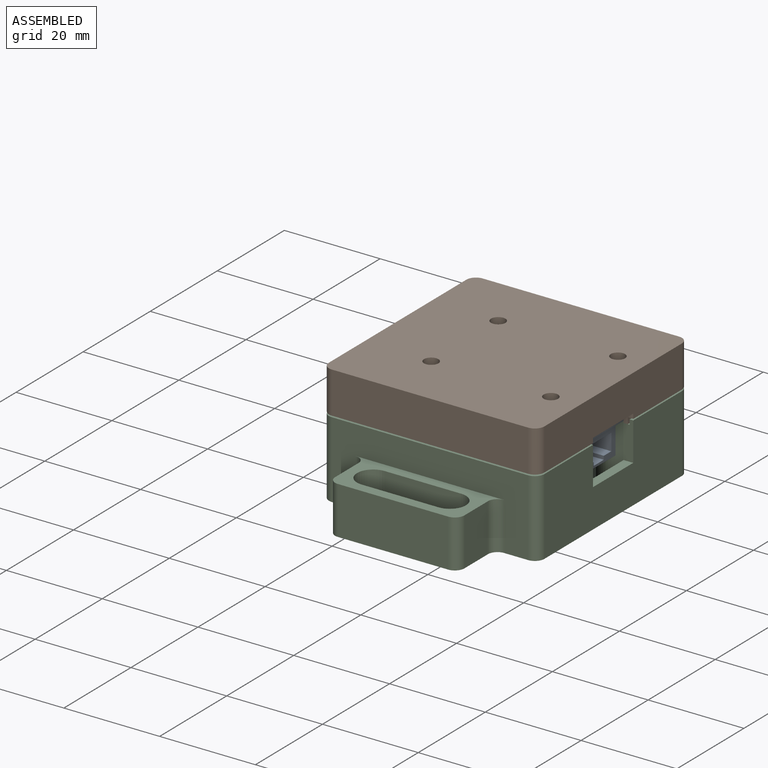
[diagram: assembled view]
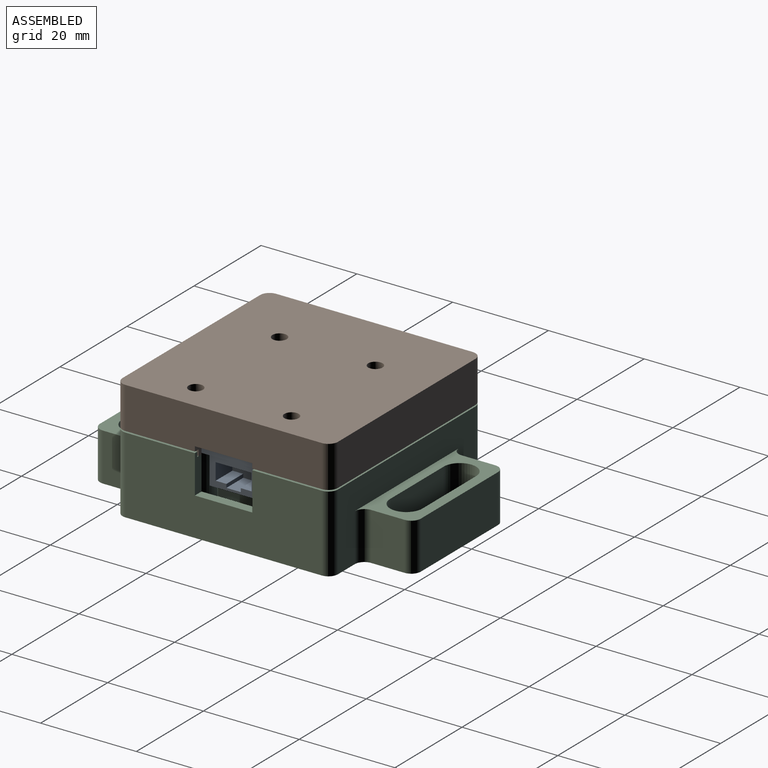
[diagram: assembled view, second angle]
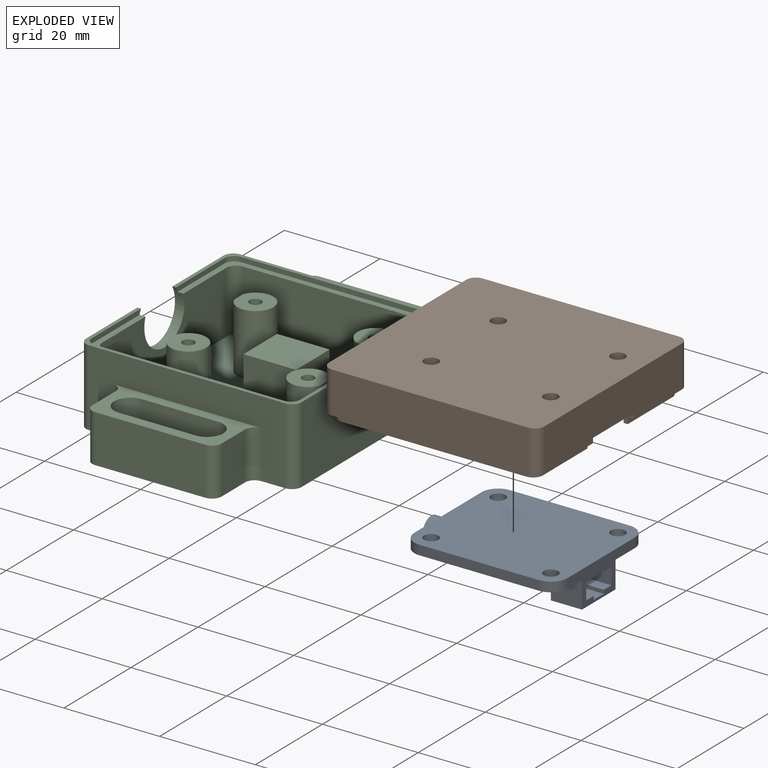
[diagram: exploded view]
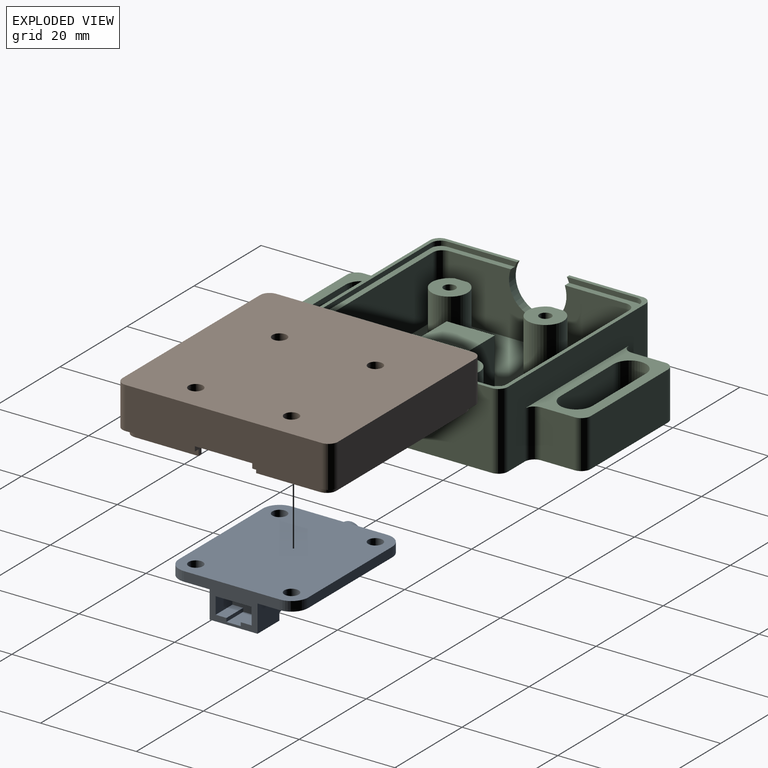
[diagram: exploded view, second angle]
ASSEMBLY  parts=3 mates=6
PART A: 41 faces, bbox 35.5x27x8 mm
  f0: plane 4x1.5mm, normal (-1,0,0), area 3.2mm2, adj f33,f35,f36,f38
  f1: plane 5x2.25mm, normal (0,0,1), area 11.2mm2, adj f2,f23,f27,f29
  f2: plane 10x6mm, normal (1,0,0), area 31.5mm2, adj f1,f3,f5,f6,f8,f23,f24,f25
  f3: plane 8x6mm, normal (0,-1,0), area 45.4mm2, adj f2,f4,f6,f8,f21,f22
  f4: plane 10x4mm, normal (-1,0,0), area 40mm2, adj f3,f5,f8,f22
  f5: plane 8x6mm, normal (0,1,0), area 45.4mm2, adj f2,f4,f6,f8,f21,f22
  f6: plane 10x6.5mm, normal (0,0,-1), area 65mm2, adj f2,f3,f5,f21
  f7: plane 32x27mm, normal (0,0,1), area 825.2mm2, adj f9,f10,f11,f12,f13,f14,f15,f16
  f8: plane 32x27mm, normal (0,0,-1), area 682.2mm2, adj f2,f3,f4,f5,f9,f10,f11,f12
  f9: plane 20x2mm, normal (1,0,0), area 40mm2, adj f7,f8,f17,f20
  f10: plane 25x2mm, normal (0,1,0), area 50mm2, adj f7,f8,f17,f18
  f11: plane 20x2mm, normal (-1,0,0), area 40mm2, adj f7,f8,f18,f19,f36
  f12: plane 25x2mm, normal (0,-1,0), area 50mm2, adj f7,f8,f19,f20
  f13: cylinder r=1.5mm len=3mm, axis (0,0,1), area 18.8mm2, adj f7,f8
  f14: cylinder r=1.5mm len=3mm, axis (0,0,1), area 18.8mm2, adj f7,f8
  f15: cylinder r=1.5mm len=3mm, axis (0,0,1), area 18.8mm2, adj f7,f8
  f16: cylinder r=1.5mm len=3mm, axis (0,0,1), area 18.8mm2, adj f7,f8
  f17: cylinder r=3.5mm len=3.5mm, axis (0,0,1), area 11mm2, adj f7,f8,f9,f10
  f18: cylinder r=3.5mm len=3.5mm, axis (0,0,-1), area 11mm2, adj f7,f8,f10,f11
  f19: cylinder r=3.5mm len=3.5mm, axis (0,0,1), area 11mm2, adj f7,f8,f11,f12
  f20: cylinder r=3.5mm len=3.5mm, axis (0,0,-1), area 11mm2, adj f7,f8,f9,f12
  f21: plane 10x1.5mm, normal (-1,0,0), area 15mm2, adj f3,f5,f6,f22
  f22: plane 10x1.5mm, normal (-0.32,0,-0.95), area 15.8mm2, adj f3,f4,f5,f21
  f23: plane 5x3.5mm, normal (0,1,0), area 17.5mm2, adj f1,f2,f26,f27
  f24: plane 5x2.25mm, normal (0,0,1), area 11.2mm2, adj f2,f25,f27,f28
  f25: plane 5x3.5mm, normal (0,-1,0), area 17.5mm2, adj f2,f24,f26,f27
  f26: plane 7.5x5mm, normal (0,0,-1), area 37.5mm2, adj f2,f23,f25,f27
  f27: plane 7.5x4.25mm, normal (1,0,0), area 28.5mm2, adj f1,f23,f24,f25,f26,f28,f29,f30
  f28: plane 5x0.75mm, normal (0,-1,0), area 3.7mm2, adj f2,f24,f27,f30
  f29: plane 5x0.75mm, normal (0,1,0), area 3.7mm2, adj f1,f2,f27,f30
  f30: plane 5x3mm, normal (0,0,1), area 15mm2, adj f2,f27,f28,f29
  f31: plane 12x4mm, normal (0,-1,0), area 48mm2, adj f8,f32,f34,f35,f36
  f32: plane 4x1.5mm, normal (-1,0,0), area 3.2mm2, adj f31,f35,f36,f38
  f33: plane 12x4mm, normal (0,1,0), area 48mm2, adj f0,f8,f34,f35,f36
  f34: plane 6x4mm, normal (1,0,0), area 24mm2, adj f8,f31,f33,f35
  f35: plane 12x6mm, normal (0,0,-1), area 72mm2, adj f0,f31,f32,f33,f34,f40
  f36: plane 6x1.5mm, normal (0,0,1), area 9mm2, adj f0,f11,f31,f32,f33,f37
  f37: plane 3x0.5mm, normal (1,0,0), area 1mm2, adj f36,f38
  f38: cylinder r=2.5mm len=5mm, axis (1,0,0), area 31.4mm2, adj f0,f32,f37,f39,f40
  f39: plane 5x5mm, normal (-1,0,0), area 19.6mm2, adj f38
  f40: plane 3x0.5mm, normal (1,0,0), area 1mm2, adj f35,f38
PART B: 52 faces, bbox 45x45x10 mm
  f0: plane 42.7x15.69mm, normal (0,0,1), area 61.2mm2, adj f1,f2,f5,f11,f13,f16,f36,f39
  f1: plane 37x8mm, normal (-1,0,0), area 263mm2, adj f0,f8,f10,f41,f43,f51
  f2: plane 14.34x1.3mm, normal (1,0,0), area 18.2mm2, adj f0,f3,f36,f51
  f3: plane 45x17.49mm, normal (0,0,1), area 88.2mm2, adj f2,f4,f7,f13,f16,f19,f36,f39
  f4: plane 41x8.7mm, normal (1,0,0), area 337.7mm2, adj f3,f9,f17,f44,f47,f51
  f5: plane 37x8mm, normal (1,0,0), area 268.4mm2, adj f0,f8,f10,f40,f42,f48,f49,f50
  f6: plane 13.35x1.3mm, normal (-1,0,0), area 17.4mm2, adj f10,f17,f38,f50
  f7: plane 41x8.7mm, normal (-1,0,0), area 344.7mm2, adj f3,f9,f17,f45,f46,f48,f49,f50
  f8: plane 41x41mm, normal (0,0,1), area 1502.7mm2, adj f1,f5,f11,f12,f25,f26,f28,f29
  f9: plane 45x45mm, normal (0,0,-1), area 1993.3mm2, adj f4,f7,f18,f19,f20,f21,f22,f23
  f10: plane 42.7x15.69mm, normal (0,0,1), area 61.2mm2, adj f1,f5,f6,f12,f14,f15,f37,f38
  f11: plane 37x8mm, normal (0,-1,0), area 296mm2, adj f0,f8,f42,f43
  f12: plane 37x8mm, normal (0,1,0), area 296mm2, adj f8,f10,f40,f41
  f13: plane 38.7x1.3mm, normal (0,1,0), area 50.3mm2, adj f0,f3,f36,f39
  f14: plane 14.34x1.3mm, normal (1,0,0), area 18.2mm2, adj f10,f17,f37,f51
  f15: plane 38.7x1.3mm, normal (0,-1,0), area 50.3mm2, adj f10,f17,f37,f38
  f16: plane 13.35x1.3mm, normal (-1,0,0), area 17.4mm2, adj f0,f3,f39,f48
  f17: plane 45x17.49mm, normal (0,0,1), area 88.2mm2, adj f4,f6,f7,f14,f15,f18,f37,f38
  f18: plane 41x8.7mm, normal (0,-1,0), area 356.7mm2, adj f9,f17,f46,f47
  f19: plane 41x8.7mm, normal (0,1,0), area 356.7mm2, adj f3,f9,f44,f45
  f20: cylinder r=1.5mm len=8mm, axis (0,0,1), area 75.4mm2, adj f9,f33
  f21: cylinder r=1.5mm len=8mm, axis (0,0,1), area 75.4mm2, adj f9,f24
  f22: cylinder r=1.5mm len=8mm, axis (0,0,1), area 75.4mm2, adj f9,f27
  f23: cylinder r=1.5mm len=8mm, axis (0,0,1), area 75.4mm2, adj f9,f30
  f24: plane 7.5x7.25mm, normal (0,0,1), area 36.7mm2, adj f21,f25,f26
  f25: plane 6x2.69mm, normal (-1,0,0), area 16.2mm2, adj f8,f24,f26
  f26: cylinder r=3.75mm len=7.5mm, axis (0,0,-1), area 124.8mm2, adj f8,f24,f25
  f27: plane 7.5x7.25mm, normal (0,0,1), area 36.7mm2, adj f22,f28,f29
  f28: cylinder r=3.75mm len=7.5mm, axis (0,0,-1), area 124.8mm2, adj f8,f27,f29
  f29: plane 6x2.69mm, normal (1,0,0), area 16.2mm2, adj f8,f27,f28
  f30: plane 7.5x7.25mm, normal (0,0,1), area 36.7mm2, adj f23,f31,f32
  f31: plane 6x2.69mm, normal (1,0,0), area 16.2mm2, adj f8,f30,f32
  f32: cylinder r=3.75mm len=7.5mm, axis (0,0,-1), area 124.8mm2, adj f8,f30,f31
  f33: plane 7.5x7.25mm, normal (0,0,1), area 36.7mm2, adj f20,f34,f35
  f34: cylinder r=3.75mm len=7.5mm, axis (0,0,-1), area 124.8mm2, adj f8,f33,f35
  f35: plane 6x2.69mm, normal (-1,0,0), area 16.2mm2, adj f8,f33,f34
  f36: cylinder r=2mm len=2mm, axis (0,0,-1), area 4.1mm2, adj f0,f2,f3,f13
  f37: cylinder r=2mm len=2mm, axis (0,0,1), area 4.1mm2, adj f10,f14,f15,f17
  f38: cylinder r=2mm len=2mm, axis (0,0,-1), area 4.1mm2, adj f6,f10,f15,f17
  f39: cylinder r=2mm len=2mm, axis (0,0,1), area 4.1mm2, adj f0,f3,f13,f16
  f40: cylinder r=2mm len=8mm, axis (0,0,-1), area 25.1mm2, adj f5,f8,f10,f12
  f41: cylinder r=2mm len=8mm, axis (0,0,1), area 25.1mm2, adj f1,f8,f10,f12
  f42: cylinder r=2mm len=8mm, axis (0,0,1), area 25.1mm2, adj f0,f5,f8,f11
  f43: cylinder r=2mm len=8mm, axis (0,0,-1), area 25.1mm2, adj f0,f1,f8,f11
  f44: cylinder r=2mm len=8.7mm, axis (0,0,1), area 27.3mm2, adj f3,f4,f9,f19
  f45: cylinder r=2mm len=8.7mm, axis (0,0,-1), area 27.3mm2, adj f3,f7,f9,f19
  f46: cylinder r=2mm len=8.7mm, axis (0,0,1), area 27.3mm2, adj f7,f9,f17,f18
  f47: cylinder r=2mm len=8.7mm, axis (0,0,-1), area 27.3mm2, adj f4,f9,f17,f18
  f48: plane 2.3x2mm, normal (0,-1,0), area 3.1mm2, adj f0,f3,f5,f7,f16,f49
  f49: plane 12x2mm, normal (0,0,1), area 24mm2, adj f5,f7,f48,f50
  f50: plane 2.3x2mm, normal (0,1,0), area 3.1mm2, adj f5,f6,f7,f10,f17,f49
  f51: cylinder r=6mm len=11.31mm, axis (-1,0,0), area 26.2mm2, adj f0,f1,f2,f3,f4,f10,f14,f17
PART C: 85 faces, bbox 45x67x16 mm
  f0: plane 43.5x16.09mm, normal (0,0,1), area 91.1mm2, adj f1,f2,f5,f11,f15,f16,f47,f48
  f1: plane 37x13mm, normal (-1,0,0), area 400.9mm2, adj f0,f9,f10,f50,f52,f84
  f2: plane 14.55x1mm, normal (-1,0,0), area 14.3mm2, adj f0,f3,f48,f84
  f3: plane 45x17.3mm, normal (0,0,1), area 58mm2, adj f2,f4,f7,f15,f16,f19,f47,f48
  f4: plane 41x16mm, normal (1,0,0), area 565mm2, adj f3,f17,f18,f53,f56,f84
  f5: plane 37x13mm, normal (1,0,0), area 397mm2, adj f0,f9,f10,f49,f51,f81,f82,f83
  f6: plane 13.75x1mm, normal (1,0,0), area 13.8mm2, adj f10,f17,f46,f83
  f7: plane 41x16mm, normal (-1,0,0), area 560mm2, adj f3,f17,f18,f54,f55,f81,f82,f83
  f8: plane 41x16mm, normal (0,-1,0), area 346mm2, adj f17,f18,f55,f56,f72,f73,f74
  f9: plane 41x41mm, normal (0,0,1), area 1392.7mm2, adj f1,f5,f11,f12,f21,f23,f26,f27
  f10: plane 43.5x16.09mm, normal (0,0,1), area 91.1mm2, adj f1,f5,f6,f12,f13,f14,f45,f46
  f11: plane 37x13mm, normal (0,-1,0), area 481mm2, adj f0,f9,f51,f52
  f12: plane 37x13mm, normal (0,1,0), area 481mm2, adj f9,f10,f49,f50
  f13: plane 14.55x1mm, normal (-1,0,0), area 14.3mm2, adj f10,f17,f45,f84
  f14: plane 39.5x1mm, normal (0,1,0), area 39.5mm2, adj f10,f17,f45,f46
  f15: plane 13.75x1mm, normal (1,0,0), area 13.8mm2, adj f0,f3,f47,f81
  f16: plane 39.5x1mm, normal (0,-1,0), area 39.5mm2, adj f0,f3,f47,f48
  f17: plane 45x17.3mm, normal (0,0,1), area 58mm2, adj f4,f6,f7,f8,f13,f14,f45,f46
  f18: plane 67x45mm, normal (0,0,-1), area 2328mm2, adj f4,f7,f8,f19,f53,f54,f55,f56
  f19: plane 41x16mm, normal (0,1,0), area 346mm2, adj f3,f18,f53,f54,f64,f79,f80
  f20: plane 7.5x7.25mm, normal (0,0,1), area 38.8mm2, adj f21,f22,f23
  f21: plane 13x2.69mm, normal (-1,0,0), area 35mm2, adj f9,f20,f23
  f22: cylinder r=1.25mm len=13mm, axis (0,0,-1), area 102.1mm2, adj f20,f24
  f23: cylinder r=3.75mm len=13mm, axis (0,0,-1), area 270.5mm2, adj f9,f20,f21
  f24: plane 2.5x2.5mm, normal (0,0,1), area 4.9mm2, adj f22
  f25: plane 7.5x7.25mm, normal (0,0,1), area 38.8mm2, adj f26,f27,f28
  f26: cylinder r=3.75mm len=13mm, axis (0,0,-1), area 270.5mm2, adj f9,f25,f27
  f27: plane 13x2.69mm, normal (1,0,0), area 35mm2, adj f9,f25,f26
  f28: cylinder r=1.25mm len=13mm, axis (0,0,-1), area 102.1mm2, adj f25,f29
  f29: plane 2.5x2.5mm, normal (0,0,1), area 4.9mm2, adj f28
  f30: plane 7.5x7.25mm, normal (0,0,1), area 38.8mm2, adj f31,f32,f33
  f31: plane 13x2.69mm, normal (1,0,0), area 35mm2, adj f9,f30,f33
  f32: cylinder r=1.25mm len=13mm, axis (0,0,-1), area 102.1mm2, adj f30,f34
  f33: cylinder r=3.75mm len=13mm, axis (0,0,-1), area 270.5mm2, adj f9,f30,f31
  f34: plane 2.5x2.5mm, normal (0,0,1), area 4.9mm2, adj f32
  f35: plane 7.5x7.25mm, normal (0,0,1), area 38.8mm2, adj f36,f37,f38
  f36: cylinder r=3.75mm len=13mm, axis (0,0,-1), area 270.5mm2, adj f9,f35,f37
  f37: plane 13x2.69mm, normal (-1,0,0), area 35mm2, adj f9,f35,f36
  f38: cylinder r=1.25mm len=13mm, axis (0,0,-1), area 102.1mm2, adj f35,f39
  f39: plane 2.5x2.5mm, normal (0,0,1), area 4.9mm2, adj f38
  f40: plane 11x10mm, normal (0,0,1), area 110mm2, adj f41,f42,f43,f44
  f41: plane 11x11mm, normal (0,1,0), area 121mm2, adj f9,f40,f42,f43
  f42: plane 11x10mm, normal (-1,0,0), area 110mm2, adj f9,f40,f41,f44
  f43: plane 11x10mm, normal (1,0,0), area 110mm2, adj f9,f40,f41,f44
  f44: plane 11x11mm, normal (0,-1,0), area 121mm2, adj f9,f40,f42,f43
  f45: cylinder r=2mm len=2mm, axis (0,0,1), area 3.1mm2, adj f10,f13,f14,f17
  f46: cylinder r=2mm len=2mm, axis (0,0,-1), area 3.1mm2, adj f6,f10,f14,f17
  f47: cylinder r=2mm len=2mm, axis (0,0,1), area 3.1mm2, adj f0,f3,f15,f16
  f48: cylinder r=2mm len=2mm, axis (0,0,-1), area 3.1mm2, adj f0,f2,f3,f16
  f49: cylinder r=2mm len=13mm, axis (0,0,-1), area 40.8mm2, adj f5,f9,f10,f12
  f50: cylinder r=2mm len=13mm, axis (0,0,1), area 40.8mm2, adj f1,f9,f10,f12
  f51: cylinder r=2mm len=13mm, axis (0,0,1), area 40.8mm2, adj f0,f5,f9,f11
  f52: cylinder r=2mm len=13mm, axis (0,0,-1), area 40.8mm2, adj f0,f1,f9,f11
  f53: cylinder r=2mm len=16mm, axis (0,0,1), area 50.3mm2, adj f3,f4,f18,f19
  f54: cylinder r=2mm len=16mm, axis (0,0,-1), area 50.3mm2, adj f3,f7,f18,f19
  f55: cylinder r=2mm len=16mm, axis (0,0,1), area 50.3mm2, adj f7,f8,f17,f18
  f56: cylinder r=2mm len=16mm, axis (0,0,-1), area 50.3mm2, adj f4,f8,f17,f18
  f57: cylinder r=3.38mm len=10mm, axis (0,0,-1), area 106mm2, adj f18,f58,f63,f64
  f58: plane 16x10mm, normal (0,1,0), area 160mm2, adj f18,f57,f59,f64
  f59: cylinder r=3.38mm len=10mm, axis (0,0,-1), area 106mm2, adj f18,f58,f63,f64
  f60: plane 10x7mm, normal (1,0,0), area 70mm2, adj f18,f64,f77,f80
  f61: plane 23x10mm, normal (0,1,0), area 230mm2, adj f18,f64,f77,f78
  f62: plane 10x7mm, normal (-1,0,0), area 70mm2, adj f18,f64,f78,f79
  f63: plane 16x10mm, normal (0,-1,0), area 160mm2, adj f18,f57,f59,f64
  f64: plane 31x11mm, normal (0,0,1), area 153.2mm2, adj f19,f57,f58,f59,f60,f61,f62,f63
  f65: plane 10x7mm, normal (1,0,0), area 70mm2, adj f18,f72,f73,f76
  f66: plane 10x7mm, normal (-1,0,0), area 70mm2, adj f18,f72,f74,f75
  f67: cylinder r=3.38mm len=10mm, axis (0,0,-1), area 106mm2, adj f18,f68,f70,f72
  f68: plane 16x10mm, normal (0,-1,0), area 160mm2, adj f18,f67,f69,f72
  f69: cylinder r=3.38mm len=10mm, axis (0,0,-1), area 106mm2, adj f18,f68,f70,f72
  f70: plane 16x10mm, normal (0,1,0), area 160mm2, adj f18,f67,f69,f72
  f71: plane 23x10mm, normal (0,-1,0), area 230mm2, adj f18,f72,f75,f76
  f72: plane 31x11mm, normal (0,0,1), area 153.2mm2, adj f8,f65,f66,f67,f68,f69,f70,f71
  f73: cylinder r=2mm len=10mm, axis (0,0,-1), area 31.4mm2, adj f8,f18,f65,f72
  f74: cylinder r=2mm len=10mm, axis (0,0,1), area 31.4mm2, adj f8,f18,f66,f72
  f75: cylinder r=2mm len=10mm, axis (0,0,-1), area 31.4mm2, adj f18,f66,f71,f72
  f76: cylinder r=2mm len=10mm, axis (0,0,1), area 31.4mm2, adj f18,f65,f71,f72
  f77: cylinder r=2mm len=10mm, axis (0,0,1), area 31.4mm2, adj f18,f60,f61,f64
  f78: cylinder r=2mm len=10mm, axis (0,0,-1), area 31.4mm2, adj f18,f61,f62,f64
  f79: cylinder r=2mm len=10mm, axis (0,0,1), area 31.4mm2, adj f18,f19,f62,f64
  f80: cylinder r=2mm len=10mm, axis (0,0,-1), area 31.4mm2, adj f18,f19,f60,f64
  f81: plane 8x2mm, normal (0,-1,0), area 14.7mm2, adj f0,f3,f5,f7,f15,f82
  f82: plane 12x2mm, normal (0,0,1), area 24mm2, adj f5,f7,f81,f83
  f83: plane 8x2mm, normal (0,1,0), area 14.7mm2, adj f5,f6,f7,f10,f17,f82
  f84: cylinder r=6mm len=12mm, axis (-1,0,0), area 47.5mm2, adj f0,f1,f2,f3,f4,f10,f13,f17
PLACE A t=(-64.17,46.24,24)mm
PLACE B rot(axis=(0,1,0),180deg) t=(-68.17,46.24,34)mm
PLACE C rot(axis=(0,0,1),180deg) t=(-68.17,46.24,9)mm fixed
MATE cylindrical B.f21 <-> C.f36  axis (0,0,-1) through (-51.67,56.24,30)mm
MATE cylindrical B.f23 <-> C.f26  axis (0,0,-1) through (-76.67,36.24,34)mm
MATE planar A.f8 <-> C.f26  axis (0,0,-1) through (-64.53,46.24,24)mm
MATE cylindrical A.f16 <-> C.f22  axis (0,0,1) through (-51.67,36.24,26)mm
MATE cylindrical A.f14 <-> C.f32  axis (0,0,1) through (-76.67,56.24,26)mm
MATE planar C.f0 <-> B.f10  axis (0,0,1) through (-47.67,33.99,24)mm
